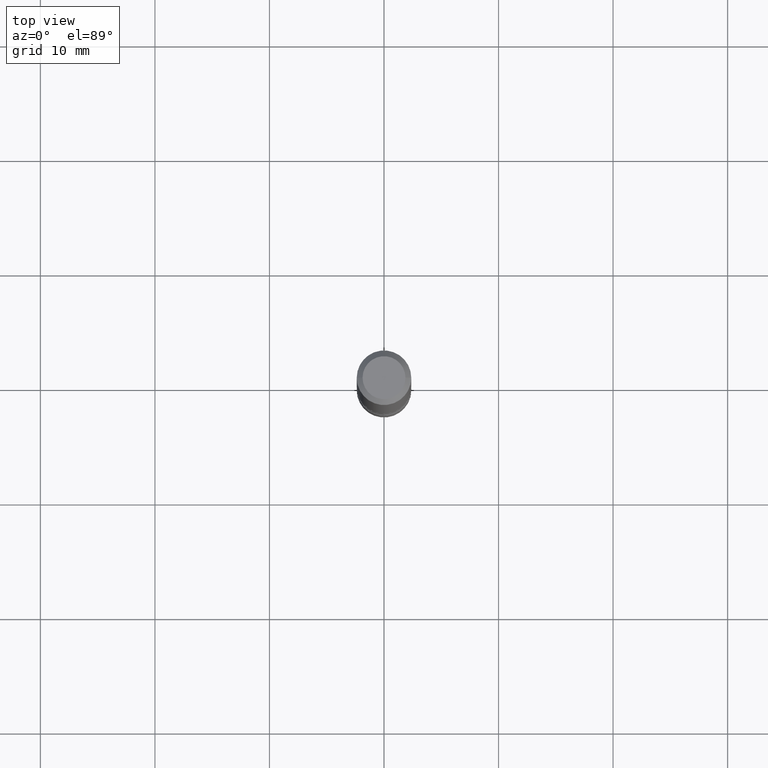
[diagram: clean part render]
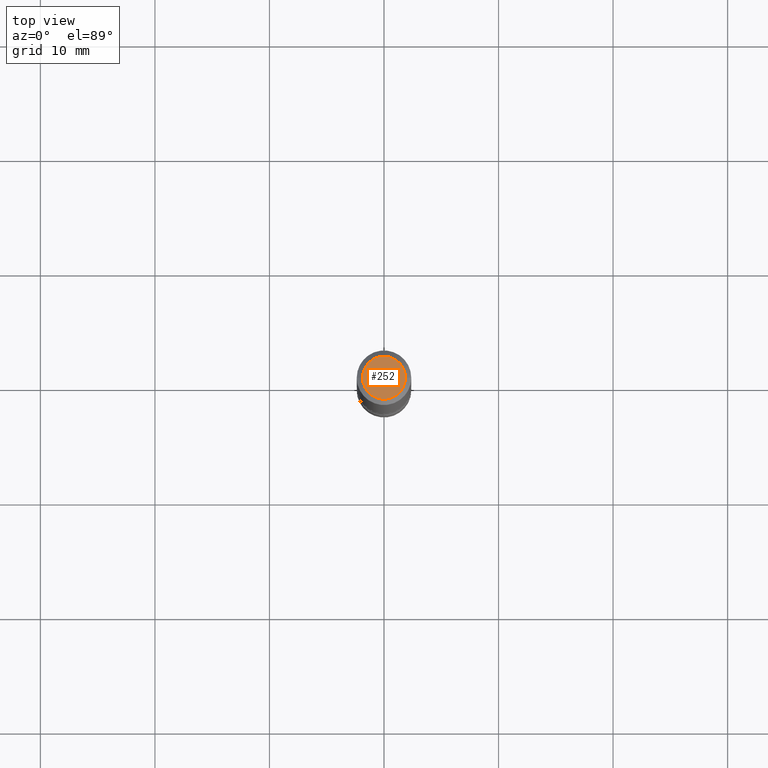
[diagram: same view with one face highlighted and labeled with its STEP entity id]
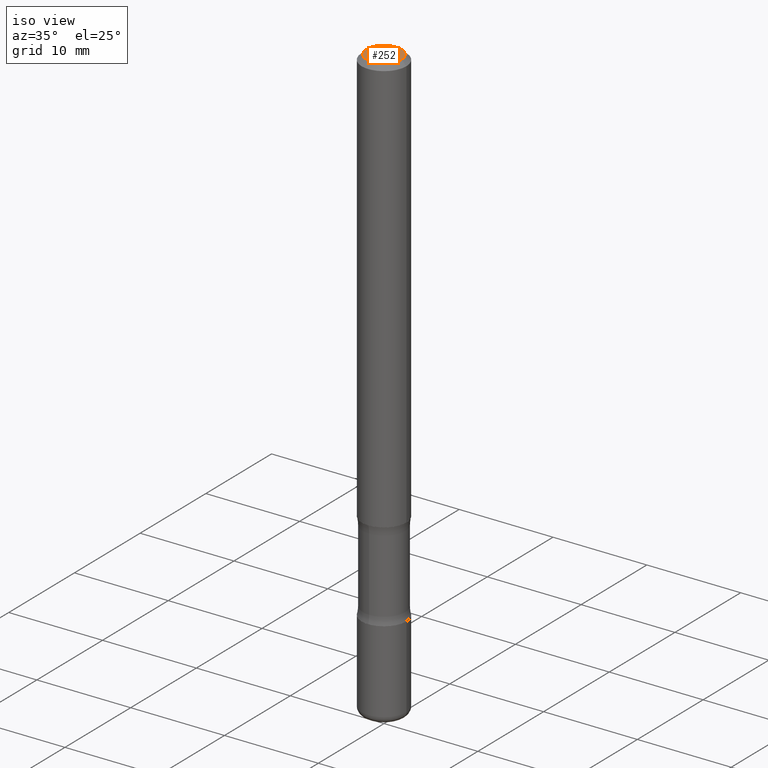
[diagram: same view with one face highlighted and labeled with its STEP entity id]
A machine part, top view. The second image highlights one B-rep face of the part: STEP entity #252.
A second angle (iso view) of the same face is appended — the face is thin or edge-on in the first view.
In plain terms, the highlighted planar face has unit normal (0, -0, -1).
Its self-contained STEP definition (entity closure, byte-faithful):
#4 = AXIS2_PLACEMENT_3D ( 'NONE', #11, #98, #521 ) ;
#11 = CARTESIAN_POINT ( 'NONE',  ( 0.000000000000000000, 0.000000000000000000, 0.000000000000000000 ) ) ;
#48 = VERTEX_POINT ( 'NONE', #528 ) ;
#56 = PLANE ( 'NONE',  #338 ) ;
#98 = DIRECTION ( 'NONE',  ( -2.445468806185136597E-29, 3.491481338843145583E-15, 1.000000000000000000 ) ) ;
#117 = DIRECTION ( 'NONE',  ( 1.000000000000000000, -6.982962677686266711E-15, 4.876176775795935793E-29 ) ) ;
#127 = CIRCLE ( 'NONE', #4, 0.07374999999999984346 ) ;
#144 = DIRECTION ( 'NONE',  ( 2.438088387897960049E-29, -3.491481338843145188E-15, -1.000000000000000000 ) ) ;
#181 = EDGE_CURVE ( 'NONE', #185, #48, #218, .T. ) ;
#185 = VERTEX_POINT ( 'NONE', #387 ) ;
#218 = CIRCLE ( 'NONE', #467, 0.07374999999999984346 ) ;
#252 = ADVANCED_FACE ( 'NONE', ( #359 ), #56, .F. ) ;
#264 = ORIENTED_EDGE ( 'NONE', *, *, #472, .T. ) ;
#277 = CARTESIAN_POINT ( 'NONE',  ( 0.000000000000000000, 0.000000000000000000, 0.000000000000000000 ) ) ;
#338 = AXIS2_PLACEMENT_3D ( 'NONE', #527, #144, #370 ) ;
#359 = FACE_OUTER_BOUND ( 'NONE', #440, .T. ) ;
#370 = DIRECTION ( 'NONE',  ( -1.000000000000000000, 6.982962677686265922E-15, -4.876176775795935793E-29 ) ) ;
#387 = CARTESIAN_POINT ( 'NONE',  ( -0.07374999999999984346, 5.499083108677921624E-16, -3.723527850031186263E-30 ) ) ;
#440 = EDGE_LOOP ( 'NONE', ( #446, #264 ) ) ;
#446 = ORIENTED_EDGE ( 'NONE', *, *, #181, .T. ) ;
#467 = AXIS2_PLACEMENT_3D ( 'NONE', #277, #500, #117 ) ;
#472 = EDGE_CURVE ( 'NONE', #48, #185, #127, .T. ) ;
#500 = DIRECTION ( 'NONE',  ( -2.445468806185136597E-29, 3.491481338843145583E-15, 1.000000000000000000 ) ) ;
#521 = DIRECTION ( 'NONE',  ( 1.000000000000000000, -6.982962677686266711E-15, 4.876176775795935793E-29 ) ) ;
#527 = CARTESIAN_POINT ( 'NONE',  ( 5.149934974793610063E-16, 0.07374999999999984346, -2.574967487396814399E-16 ) ) ;
#528 = CARTESIAN_POINT ( 'NONE',  ( 0.07374999999999984346, -6.094815207017961198E-16, 3.931526600461598749E-30 ) ) ;